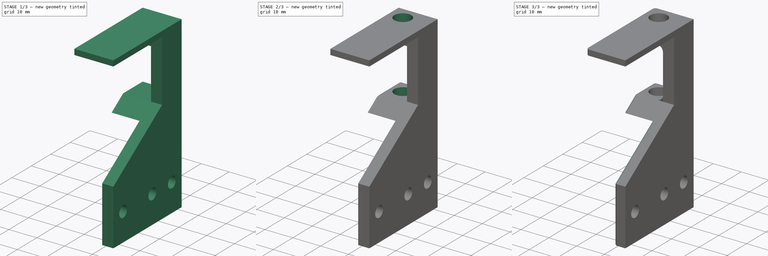
[diagram: build sequence overview — one tinted view per stage of 3, left to right]
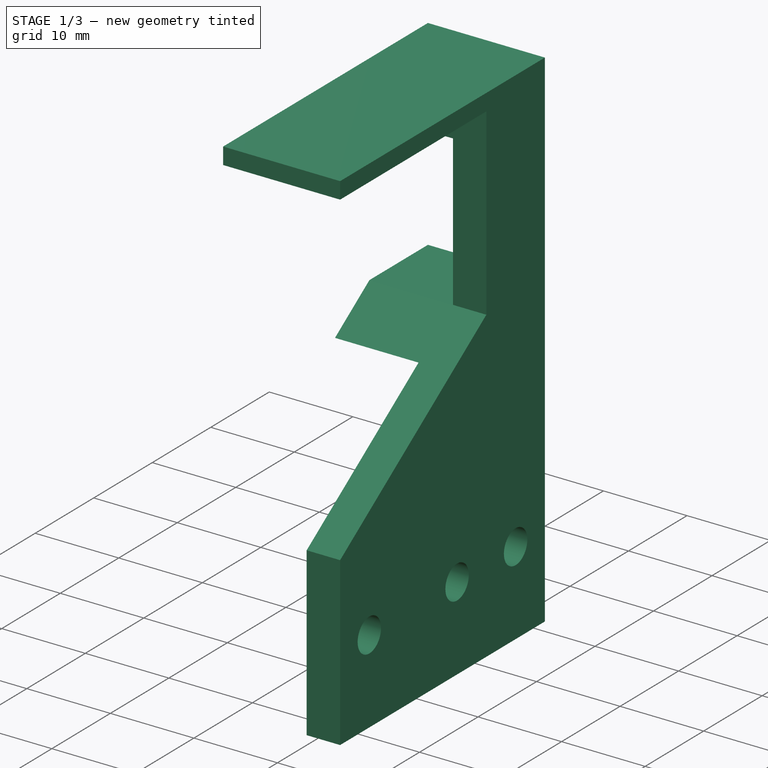
[diagram: stage 1 of 3 — iso view after this stage's code; geometry added in this stage tinted green]
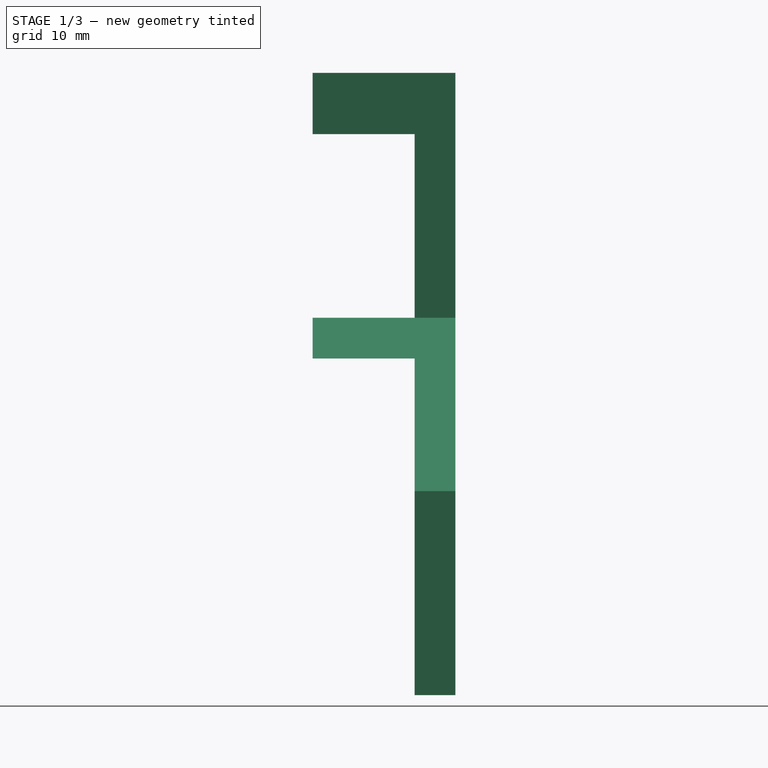
[diagram: stage 1 of 3 — front view after this stage's code; geometry added in this stage tinted green]
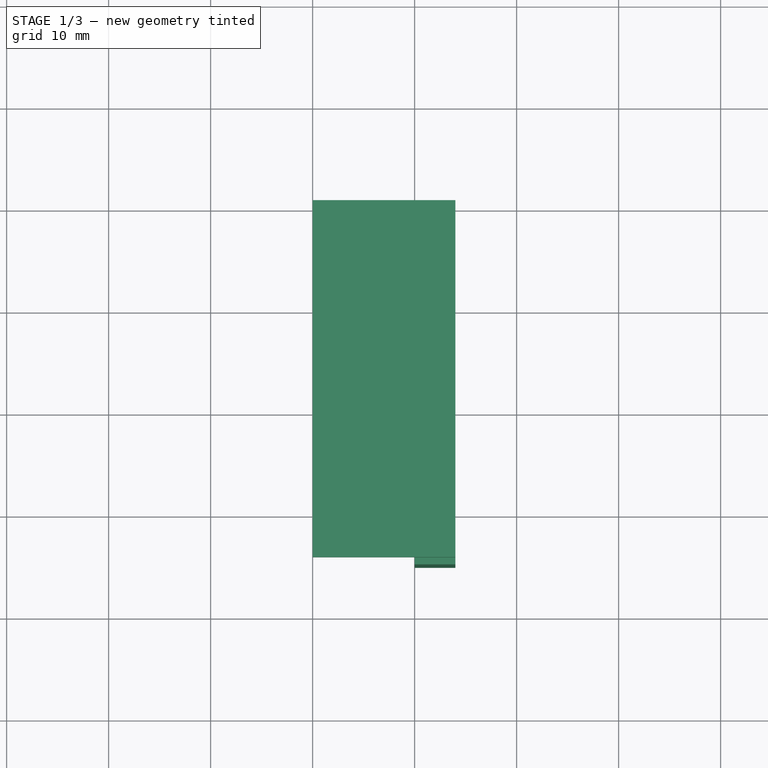
[diagram: stage 1 of 3 — top view after this stage's code; geometry added in this stage tinted green]
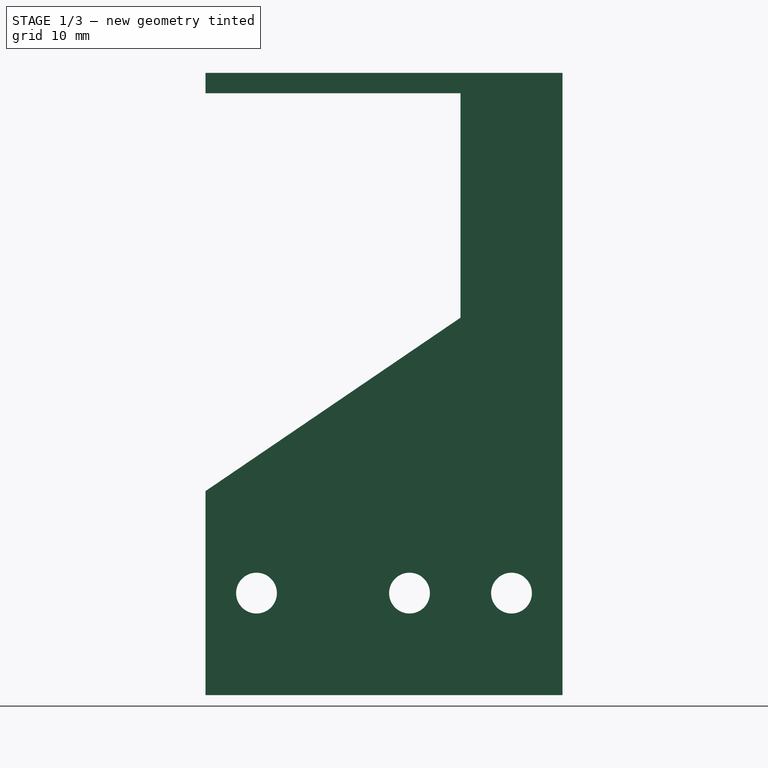
[diagram: stage 1 of 3 — right view after this stage's code; geometry added in this stage tinted green]
FCSTD DOCUMENT  (FreeCAD 0.21R33771 (Git))
Label: RopeBracket
License: All rights reserved
LicenseURL: http://en.wikipedia.org/wiki/All_rights_reserved
objects: Sketcher::SketchObject×4, PartDesign::Fillet×4, PartDesign::Pocket×3, App::MeasureDistance×2, PartDesign::Pad×1, PartDesign::Body×1, App::Part×1
note: 21 computed .brp shape members not serialized (recipe doc carries the construction recipe); baked Part::Feature solids carry a one-line shape summary decoded from their .brp

FEATURE [Sketcher::SketchObject] Sketch
  FullyConstrained = false
  MapMode = 5
  Placement = pos=(0,0,0) rot=(1,0,0;1.5708rad)
  Support = -> [XZ_Plane001]
  expr: Constraints[28] = 5 + 22
  expr: Constraints[30] = 23
  sketch-geometry (11):
    g0: LineSegment StartX=-10 StartY=24 StartZ=0 EndX=4 EndY=24 EndZ=0
    g1: LineSegment StartX=4 StartY=24 StartZ=0 EndX=4 EndY=-37 EndZ=0
    g2: LineSegment StartX=4 StartY=-37 StartZ=0 EndX=0 EndY=-37 EndZ=0
    g3: LineSegment StartX=0 StartY=-37 StartZ=0 EndX=0 EndY=-4 EndZ=0
    g4: LineSegment StartX=0 StartY=-4 StartZ=0 EndX=-10 EndY=-4 EndZ=0
    g5: LineSegment StartX=-10 StartY=-4 StartZ=0 EndX=-10 EndY=1.8e-15 EndZ=0
    g6: LineSegment StartX=-10 StartY=1.8e-15 StartZ=0 EndX=0 EndY=1.8e-15 EndZ=0
    g7: LineSegment StartX=0 StartY=1.8e-15 StartZ=0 EndX=0 EndY=18 EndZ=0
    g8: LineSegment StartX=0 StartY=18 StartZ=0 EndX=-10 EndY=18 EndZ=0
    g9: LineSegment StartX=-10 StartY=18 StartZ=0 EndX=-10 EndY=24 EndZ=0
    g10: LineSegment StartX=-36.063 StartY=-27 StartZ=0 EndX=29.4043 EndY=-27 EndZ=0
  constraints (32):
    c: Horizontal(g0)
    c: Coincident(g0,g1)
    c: Vertical(g1)
    c: Coincident(g1,g2)
    c: Coincident(g2,g3)
    c: Vertical(g3)
    c: Coincident(g3,g4)
    c: Horizontal(g4)
    c: Coincident(g4,g5)
    c: Vertical(g5)
    c: Coincident(g5,g6)
    c: Horizontal(g6)
    c: Coincident(g6,g7)
    c: PointOnObject(g7,g-2)
    c: Vertical(g7)
    c: Coincident(g7,g8)
    c: Horizontal(g8)
    c: Coincident(g8,g9)
    c: Coincident(g9,g0)
    c: Vertical(g9)
    c: DistanceY(g5,g5) = 4
    c: Horizontal(g2)
    c: DistanceX(g4,g4) = 10
    c: PointOnObject(g6,g3)
    c: DistanceY(g9,g9) = 6
    c: DistanceX(g2,g2) = 4
    c: Vertical(g8,g5)
    c: Horizontal(g10)
    c: DistanceY(g10,g-1) = 27
    c: Distance(g2,g10) = 10
    c: Distance(g4,g10) = 23
    c: DistanceY(g5,g8) = 18
FEATURE [PartDesign::Pad] Pad
  Direction = (0,-1,-2e-16)
  Length = 35
  Length2 = 10
  Placement = pos=(0,0,0) rot=(1,0,0;1.5708rad)
  Profile = -> Sketch
  ReferenceAxis = -> Sketch [N_Axis]
  Refine = true
  Type = 0
FEATURE [Sketcher::SketchObject] Sketch001
  AttachmentOffset = pos=(0,0,26) rot=(0,0,1;0rad)
  FullyConstrained = false
  MapMode = 5
  Placement = pos=(0,0,26) rot=(0,0,1;0rad)
  Support = -> [XY_Plane001]
  sketch-geometry (2):
    g0: LineSegment StartX=-21.9429 StartY=-5 StartZ=0 EndX=30.6286 EndY=-5 EndZ=0
    g1: Circle CenterX=-5 CenterY=-5 CenterZ=0 NormalX=0 NormalY=0 NormalZ=1 AngleXU=0 Radius=3.05
  constraints (5):
    c: Horizontal(g0)
    c: PointOnObject(g1,g0)
    c: Diameter(g1) = 6.1
    c: DistanceX(g-2,g1) = -5
    c: DistanceY(g-1,g0) = -5
FEATURE [Sketcher::SketchObject] Sketch002
  FullyConstrained = true
  MapMode = 5
  Placement = pos=(0,0,0) rot=(0.57735,0.57735,0.57735;2.0944rad)
  Support = -> [YZ_Plane001]
  expr: Constraints[9] = 22 + 5 - 10
  sketch-geometry (4):
    g0: LineSegment StartX=-35 StartY=22 StartZ=0 EndX=-10 EndY=22 EndZ=0
    g1: LineSegment StartX=-10 StartY=22 StartZ=0 EndX=-10 EndY=0 EndZ=0
    g2: LineSegment StartX=-35 StartY=-17 StartZ=0 EndX=-35 EndY=22 EndZ=0
    g3: LineSegment StartX=-35 StartY=-17 StartZ=0 EndX=-10 EndY=0 EndZ=0
  constraints (12):
    c: Coincident(g0,g1)
    c: Coincident(g2,g0)
    c: Horizontal(g0)
    c: Vertical(g1)
    c: Vertical(g2)
    c: DistanceX(g0,g-1) = 10
    c: Coincident(g1,g3)
    c: Coincident(g3,g2)
    c: PointOnObject(g1,g-1)
    c: DistanceY(g2,g-1) = 17
    c: DistanceX(g0,g-1) = 35
    c: DistanceY(g-1,g0) = 22
FEATURE [PartDesign::Pocket] Pocket
  BaseFeature = -> Pad
  Direction = (-1,2e-16,-3e-16)
  Length = 20
  Length2 = 5
  Midplane = true
  Placement = pos=(0,0,0) rot=(1,0,0;1.5708rad)
  Profile = -> Sketch002
  ReferenceAxis = -> Sketch002 [N_Axis]
  Refine = true
  Type = 0
FEATURE [Sketcher::SketchObject] Sketch003
  ExternalGeometry = -> [Pocket]
  FullyConstrained = false
  MapMode = 5
  Placement = pos=(0,0,0) rot=(0.57735,0.57735,0.57735;2.0944rad)
  Support = -> [YZ_Plane001]
  sketch-geometry (5):
    g0: LineSegment StartX=-44.6793 StartY=-27 StartZ=0 EndX=6.52968 EndY=-27 EndZ=0
    g1: LineSegment StartX=-5 StartY=27.2426 StartZ=0 EndX=-5 EndY=-56.7574 EndZ=0
    g2: Circle CenterX=-5 CenterY=-27 CenterZ=0 NormalX=0 NormalY=0 NormalZ=1 AngleXU=0 Radius=2
    g3: Circle CenterX=-15 CenterY=-27 CenterZ=0 NormalX=0 NormalY=0 NormalZ=1 AngleXU=0 Radius=2
    g4: Circle CenterX=-30 CenterY=-27 CenterZ=0 NormalX=0 NormalY=0 NormalZ=1 AngleXU=0 Radius=2
  constraints (14):
    c: Horizontal(g0)
    c: Vertical(g1)
    c: DistanceX(g-2,g1) = -5
    c: Equal(g4,g3)
    c: Equal(g3,g2)
    c: PointOnObject(g4,g0)
    c: PointOnObject(g3,g0)
    c: Tangent(g2,g0) = -1.5708
    c: PointOnObject(g2,g1)
    c: DistanceX(g3,g2) = 10
    c: DistanceX(g4,g2) = 25
    c: Diameter(g2) = 4
    c: Distance(g0,g-4) = 10
    c: DistanceY(g0,g-1) = 27
FEATURE [PartDesign::Pocket] Pocket001
  BaseFeature = -> Pocket
  Direction = (-1,2e-16,-3e-16)
  Length = 10
  Length2 = 5
  Midplane = true
  Placement = pos=(0,0,0) rot=(1,0,0;1.5708rad)
  Profile = -> Sketch003
  ReferenceAxis = -> Sketch003 [N_Axis]
  Refine = true
  Type = 0
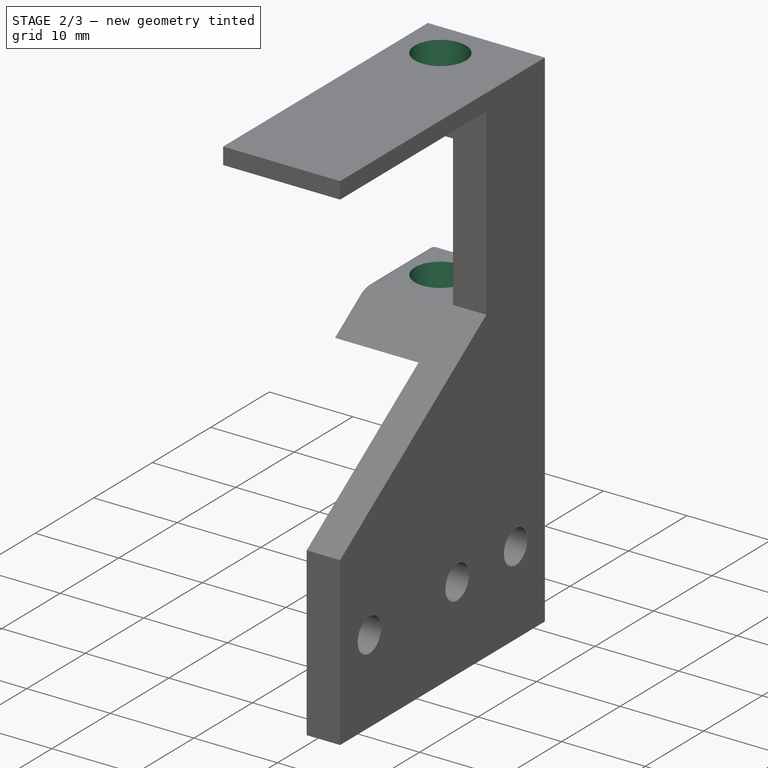
[diagram: stage 2 of 3 — iso view after this stage's code; geometry added in this stage tinted green]
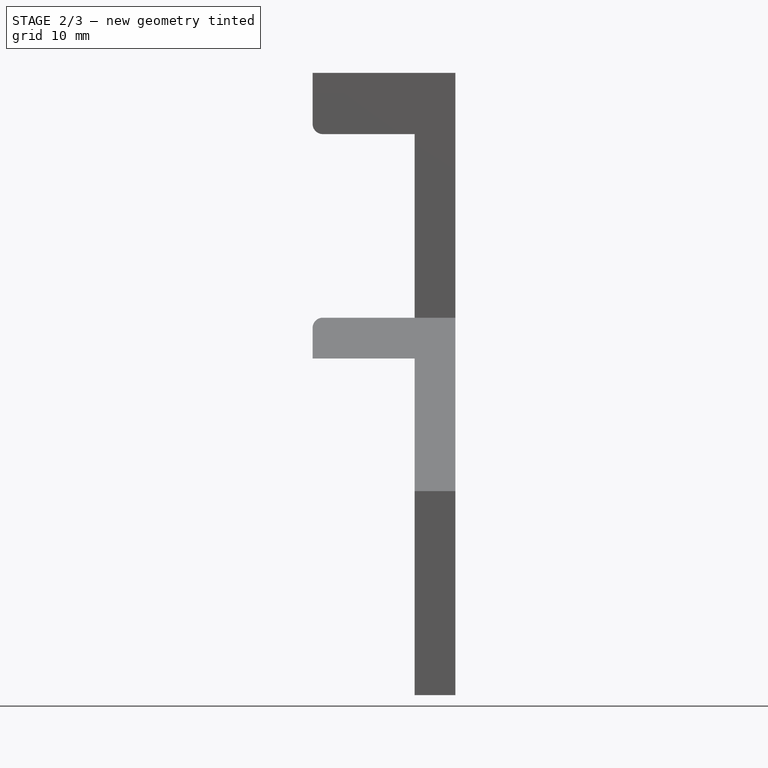
[diagram: stage 2 of 3 — front view after this stage's code; geometry added in this stage tinted green]
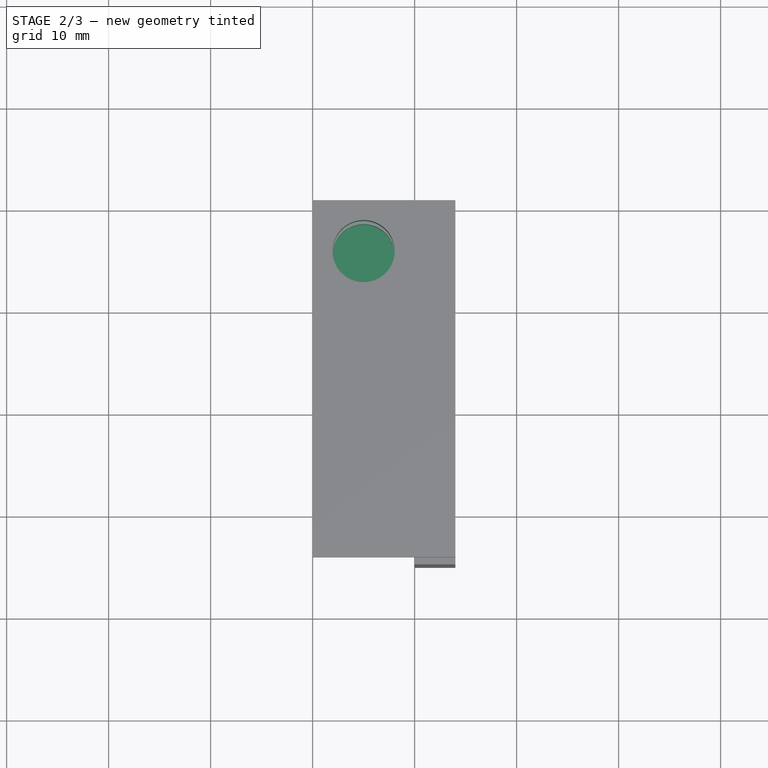
[diagram: stage 2 of 3 — top view after this stage's code; geometry added in this stage tinted green]
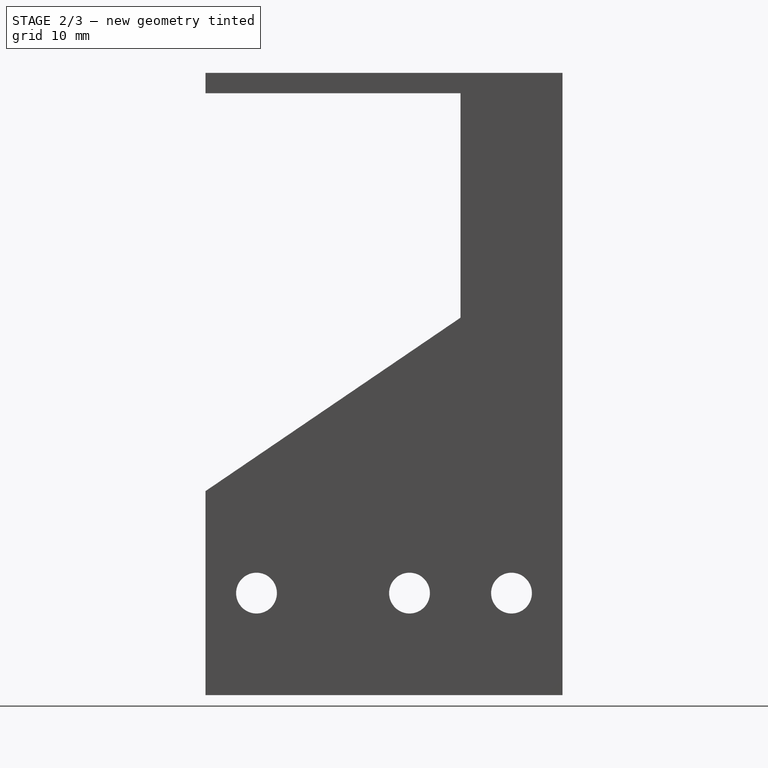
[diagram: stage 2 of 3 — right view after this stage's code; geometry added in this stage tinted green]
FEATURE [PartDesign::Pocket] Pocket002
  BaseFeature = -> Pocket001
  Direction = (0,0,-1)
  Length = 29
  Length2 = 5
  Placement = pos=(0,0,0) rot=(1,0,0;1.5708rad)
  Profile = -> Sketch001
  ReferenceAxis = -> Sketch001 [N_Axis]
  Refine = true
  Type = 0
FEATURE [App::MeasureDistance] Distance  label="Distance: 28.00 mm"
  Distance = 28.0004
  P1 = (-10,-0.993747,24)
  P2 = (-10,-1.13958,-4)
FEATURE [App::MeasureDistance] Distance001  label="Distance: 18.00 mm"
  Distance = 18.0002
  P1 = (-10,-7.14121,18)
  P2 = (-10,-7.22346,-8.61103e-07)
FEATURE [PartDesign::Fillet] Fillet
  Base = -> Pocket002 [Edge10,Edge46]
  BaseFeature = -> Pocket002
  Placement = pos=(0,0,0) rot=(1,0,0;1.5708rad)
  Radius = 1
  Refine = true
  SupportTransform = false
  UseAllEdges = false
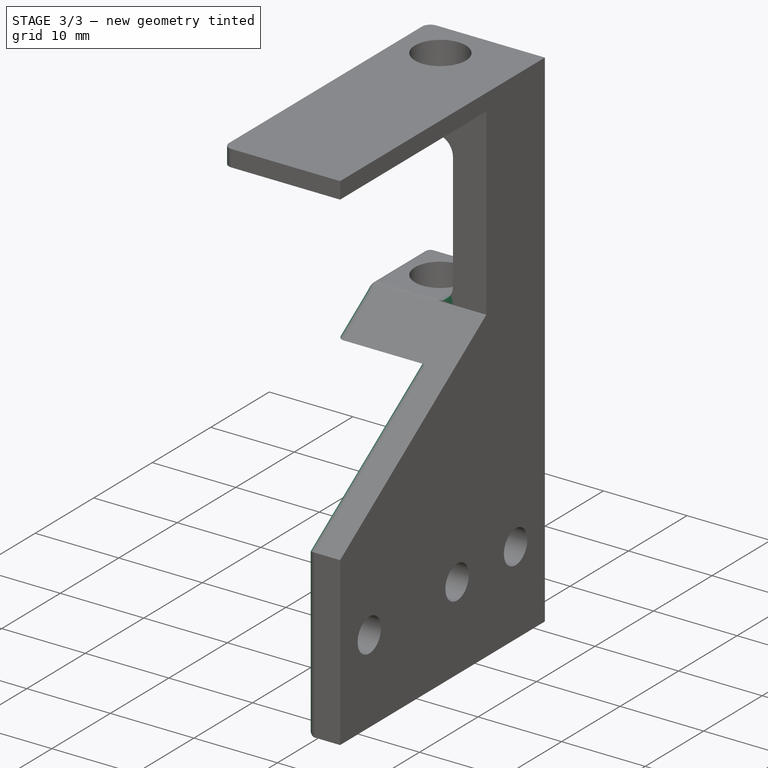
[diagram: stage 3 of 3 — iso view after this stage's code; geometry added in this stage tinted green]
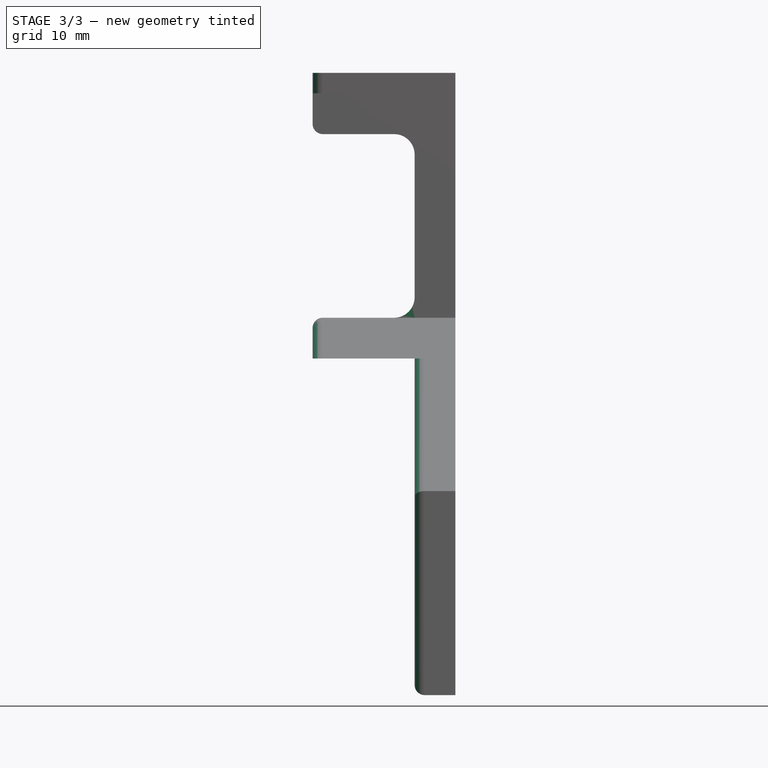
[diagram: stage 3 of 3 — front view after this stage's code; geometry added in this stage tinted green]
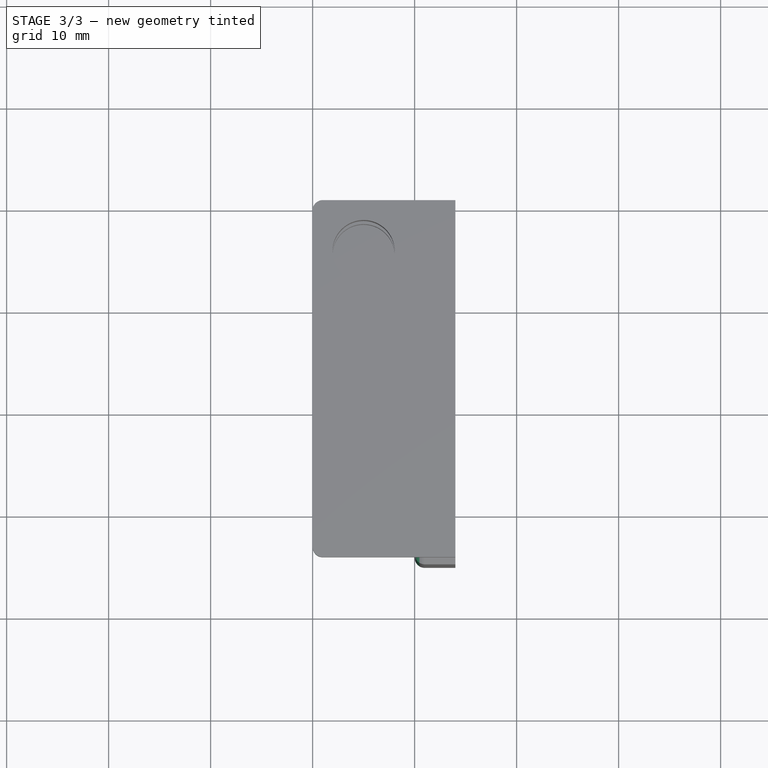
[diagram: stage 3 of 3 — top view after this stage's code; geometry added in this stage tinted green]
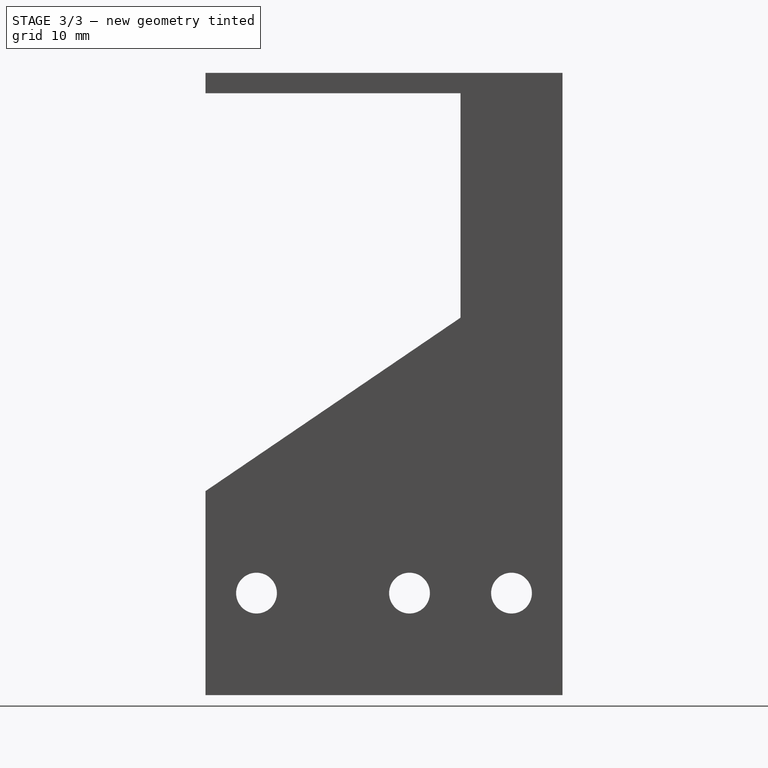
[diagram: stage 3 of 3 — right view after this stage's code; geometry added in this stage tinted green]
FEATURE [PartDesign::Fillet] Fillet001
  Base = -> Fillet [Edge43,Edge42,Edge41,Edge11]
  BaseFeature = -> Fillet
  Placement = pos=(0,0,0) rot=(1,0,0;1.5708rad)
  Radius = 1
  Refine = true
  SupportTransform = false
  UseAllEdges = false
FEATURE [PartDesign::Fillet] Fillet002
  Base = -> Fillet001 [Edge50,Edge47]
  BaseFeature = -> Fillet001
  Placement = pos=(0,0,0) rot=(1,0,0;1.5708rad)
  Radius = 2
  Refine = true
  SupportTransform = false
  UseAllEdges = false
FEATURE [PartDesign::Fillet] Fillet003
  Base = -> Fillet002 [Edge35,Edge5,Edge12,Edge60]
  BaseFeature = -> Fillet002
  Placement = pos=(0,0,0) rot=(1,0,0;1.5708rad)
  Radius = 1
  Refine = true
  SupportTransform = false
  UseAllEdges = false
FEATURE [PartDesign::Body] Body
  Group = -> [Sketch,Pad,Sketch001,Sketch002,Pocket,Sketch003,Pocket001,Pocket002,Fillet,Fillet001,Fillet002,Fillet003]
  Origin = -> Origin001
  Tip = -> Fillet003
FEATURE [App::Part] Part
  Group = -> [Body]
  Origin = -> Origin
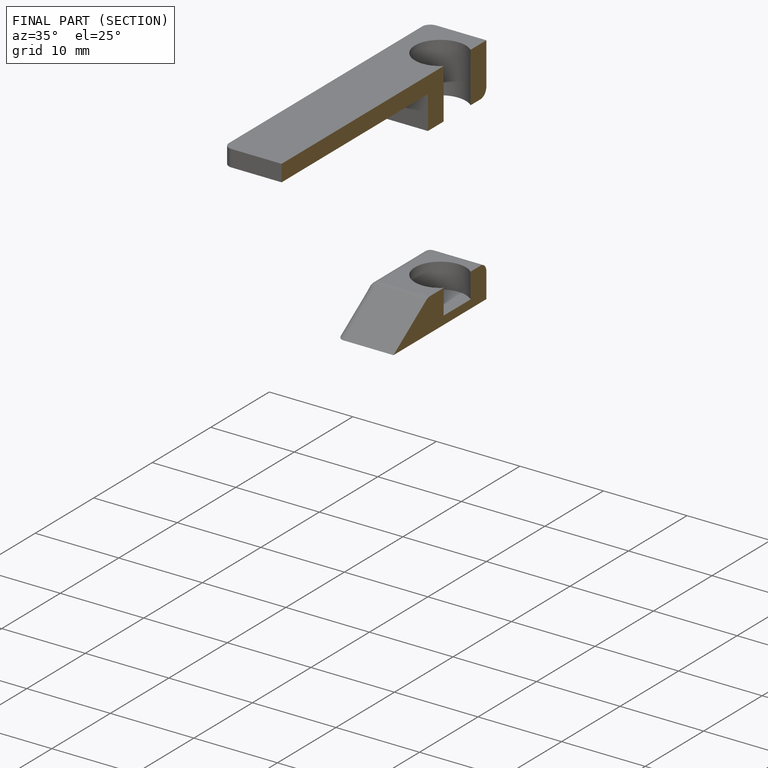
[diagram: finished part — half-section view (interior)]
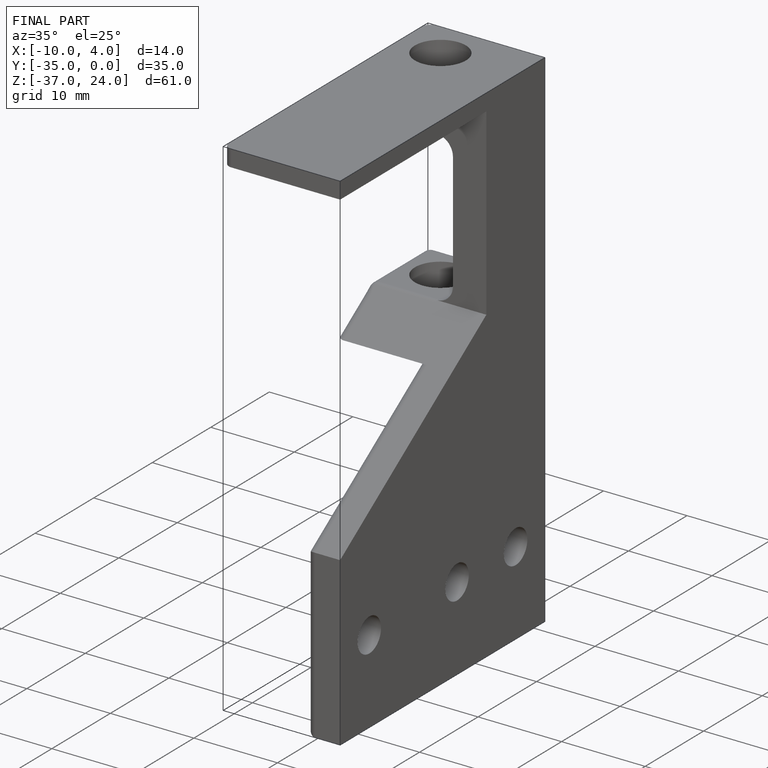
[diagram: finished part — iso view with bounding-box wireframe]
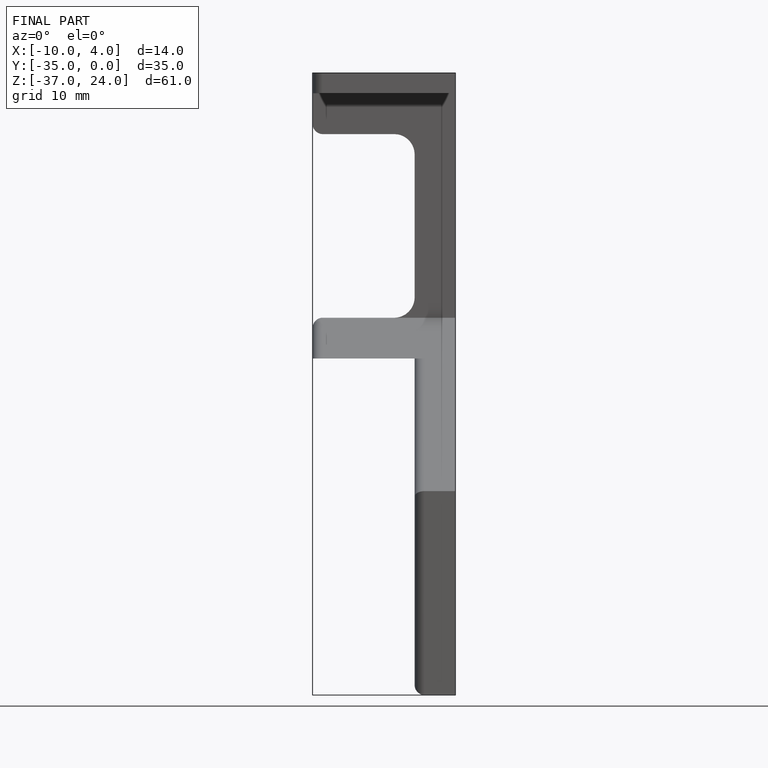
[diagram: finished part — front view with bounding-box wireframe]
